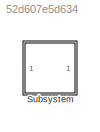
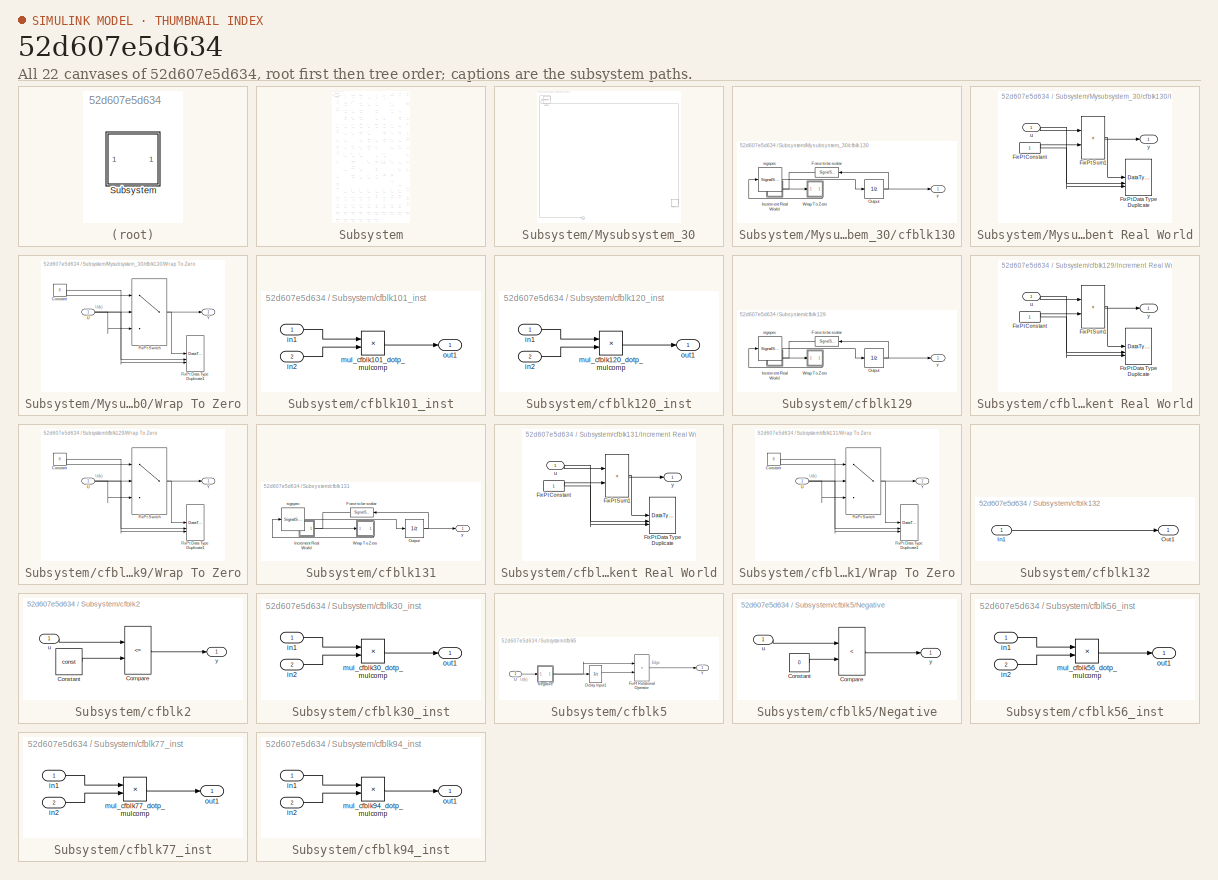
[diagram: thumbnail index - all 22 canvases of the model, root first then tree order]
MODEL slx_52d607e5d634
KIND model
CONFIG AbsTol = auto
CONFIG EnableMultiTasking = off
CONFIG FixedStep = auto
CONFIG MaxStep = auto
CONFIG MinStep = auto
CONFIG RelTol = 1e-3
CONFIG SampleTimeConstraint = Unconstrained
CONFIG SolverName = VariableStepAuto
CONFIG StartTime = 0.0
CONFIG StopTime = 10.0
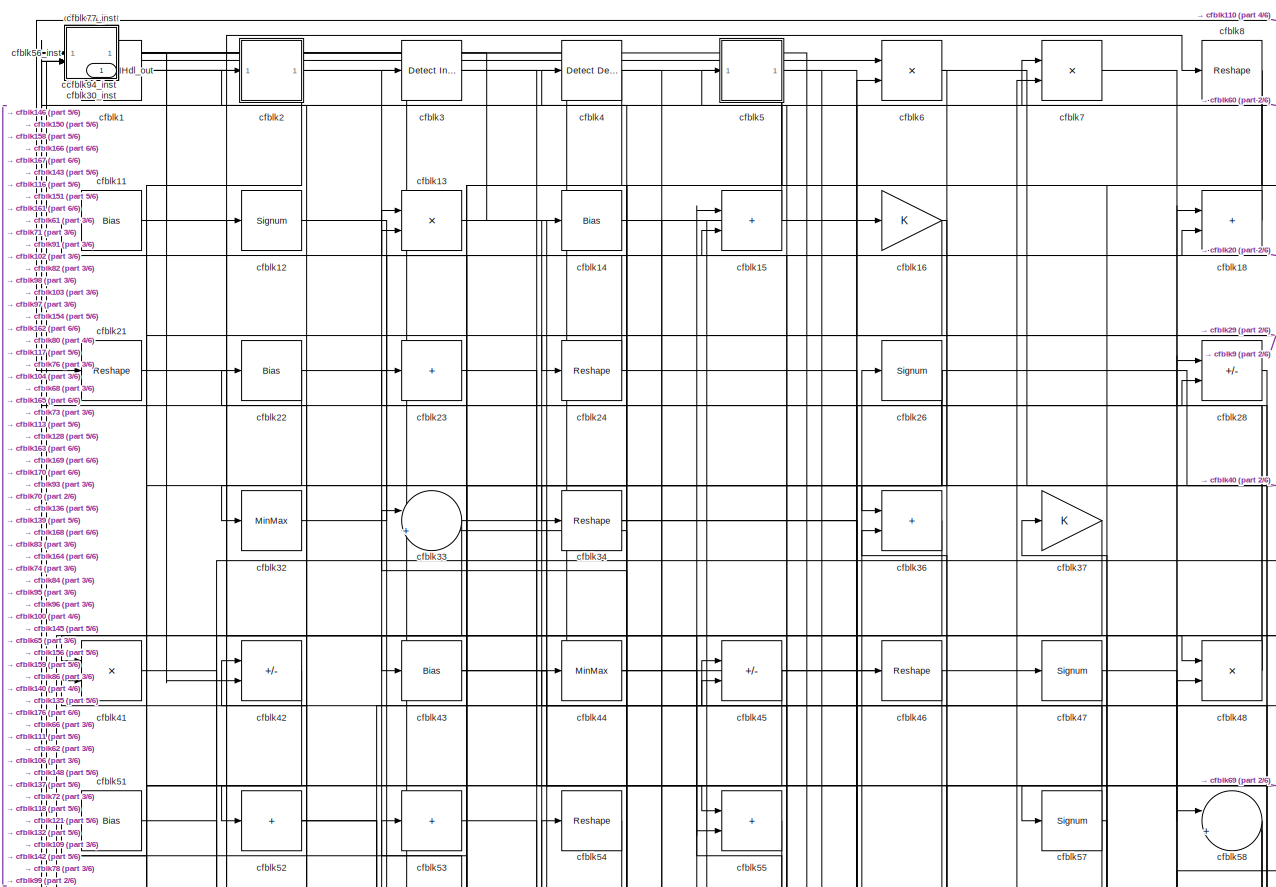
[diagram: Subsystem - part 1/6, full width, top band]
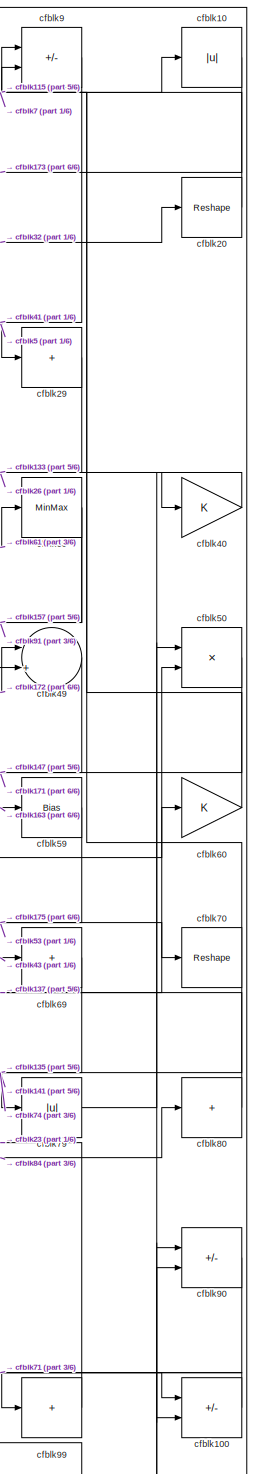
[diagram: Subsystem - part 2/6, top right region]
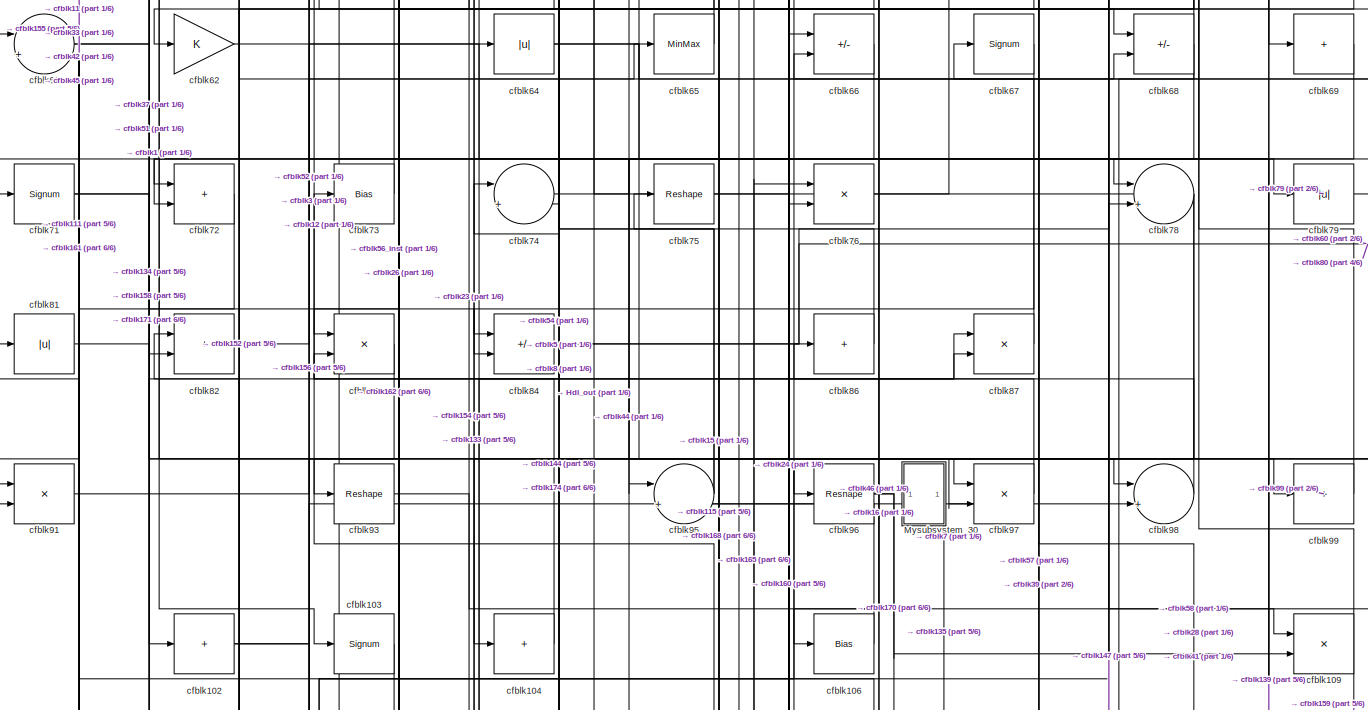
[diagram: Subsystem - part 3/6, full width, middle band]
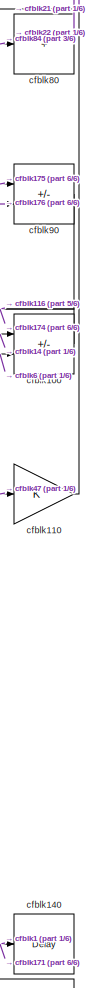
[diagram: Subsystem - part 4/6, middle right region]
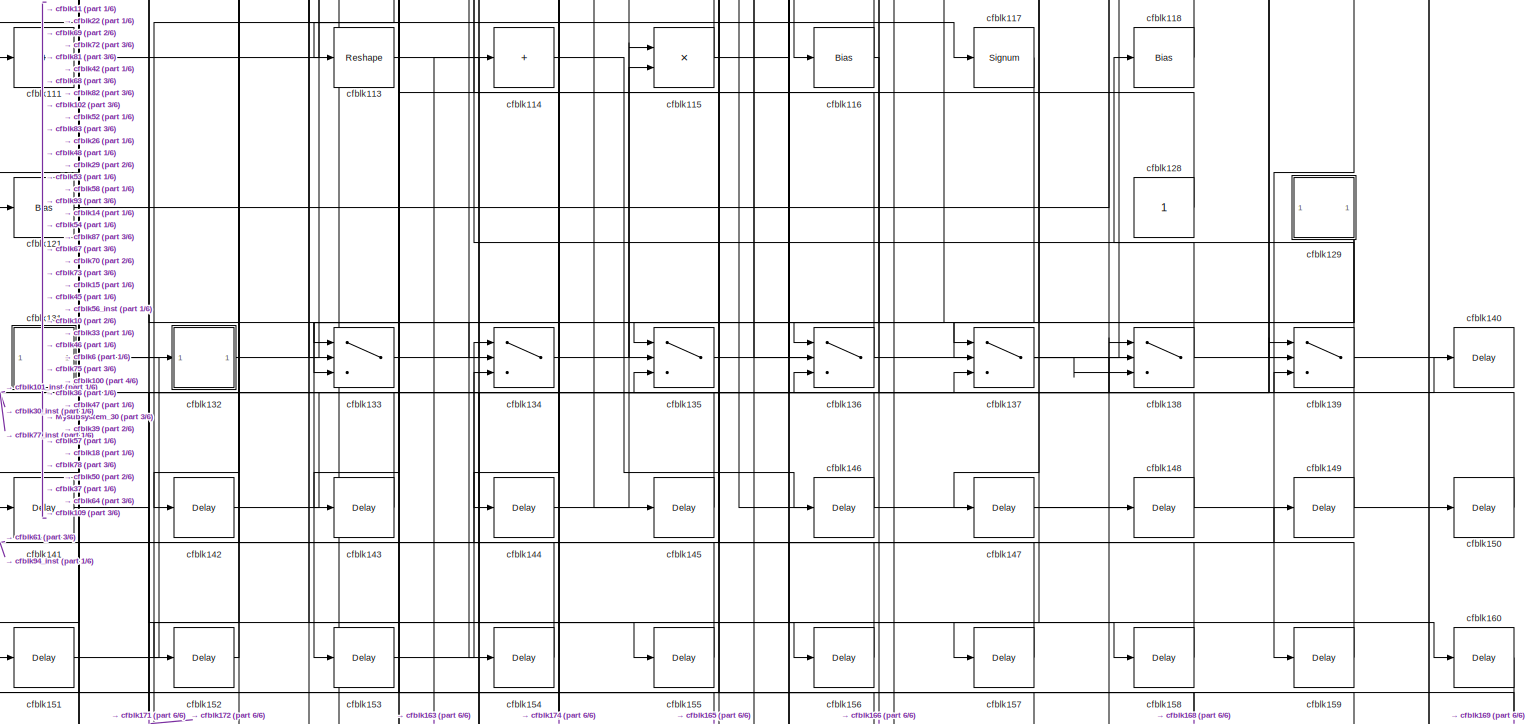
[diagram: Subsystem - part 5/6, full width, bottom band]
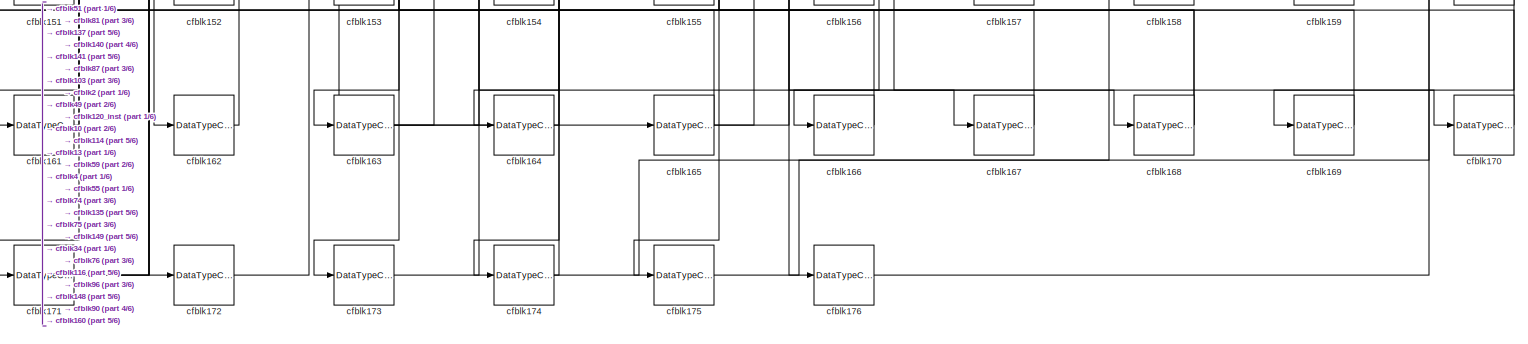
[diagram: Subsystem - part 6/6, full width, bottom band]
BLOCK [SubSystem] Subsystem
BLOCK [Outport] Subsystem/Hdl_out
  OutDataTypeStr = uint8
  SampleTime = 1
BLOCK [SubSystem] Subsystem/Mysubsystem_30
BLOCK [Outport] Subsystem/Mysubsystem_30/Out1
  SampleTime = 1
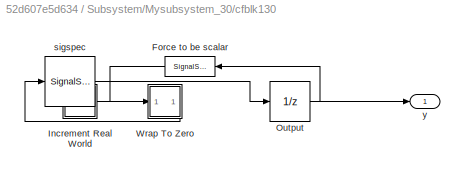
BLOCK [SubSystem] Subsystem/Mysubsystem_30/cfblk130
BLOCK [SignalSpecification] Subsystem/Mysubsystem_30/cfblk130/Force to be scalar
  Dimensions = 1
  DisableCoverage = on
BLOCK [SubSystem] Subsystem/Mysubsystem_30/cfblk130/Increment Real World
BLOCK [Constant] Subsystem/Mysubsystem_30/cfblk130/Increment Real World/FixPt Constant
  DisableCoverage = on
  OutDataTypeStr = Inherit: Inherit via back propagation
  SampleTime = -1
BLOCK [DataTypeDuplicate] Subsystem/Mysubsystem_30/cfblk130/Increment Real World/FixPt Data Type Duplicate
  DisableCoverage = on
  NumInputPorts = 3
BLOCK [Sum] Subsystem/Mysubsystem_30/cfblk130/Increment Real World/FixPt Sum1
  IconShape = rectangular
  InputSameDT = on
  LockScale = on
  OutDataTypeStr = Inherit: Inherit via back propagation
BLOCK [Inport] Subsystem/Mysubsystem_30/cfblk130/Increment Real World/u
  OutDataTypeStr = uint16
  SampleTime = 1
BLOCK [Outport] Subsystem/Mysubsystem_30/cfblk130/Increment Real World/y
  SampleTime = 1
BLOCK [UnitDelay] Subsystem/Mysubsystem_30/cfblk130/Output
  HasFrameUpgradeWarning = on
  InitialCondition = 0.0
  SampleTime = tsamp
BLOCK [SubSystem] Subsystem/Mysubsystem_30/cfblk130/Wrap To Zero
BLOCK [Constant] Subsystem/Mysubsystem_30/cfblk130/Wrap To Zero/Constant
  DisableCoverage = on
  OutDataTypeStr = Inherit: Inherit via back propagation
  SampleTime = -1
  Value = 0
BLOCK [DataTypeDuplicate] Subsystem/Mysubsystem_30/cfblk130/Wrap To Zero/FixPt Data Type Duplicate1
  DisableCoverage = on
  NumInputPorts = 3
BLOCK [Switch] Subsystem/Mysubsystem_30/cfblk130/Wrap To Zero/FixPt Switch
  Criteria = u2 > Threshold
  InputSameDT = off
  OutDataTypeStr = Inherit: Inherit via back propagation
  SaturateOnIntegerOverflow = off
  Threshold = Threshold
  ZeroCross = off
BLOCK [Inport] Subsystem/Mysubsystem_30/cfblk130/Wrap To Zero/U
  OutDataTypeStr = uint16
  SampleTime = 1
BLOCK [Outport] Subsystem/Mysubsystem_30/cfblk130/Wrap To Zero/Y
  SampleTime = 1
BLOCK [SignalSpecification] Subsystem/Mysubsystem_30/cfblk130/sigspec
  Dimensions = 1
  OutDataTypeStr = uint16
BLOCK [Outport] Subsystem/Mysubsystem_30/cfblk130/y
  SampleTime = 1
BLOCK [MinMax] Subsystem/Mysubsystem_30/cfblk63
BLOCK [Reference] Subsystem/cfblk1  REF=simulink/Logic and Bit
Operations/Detect
Increase
  LibrarySourceBlock = hdlsllib/Logic and Bit\nOperations/Detect\nIncrease
  SourceBlock = simulink/Logic and Bit\nOperations/Detect\nIncrease
  SourceType = Detect Increase
BLOCK [Abs] Subsystem/cfblk10
  OutDataTypeStr = uint8
  SaturateOnIntegerOverflow = off
BLOCK [Sum] Subsystem/cfblk100
  IconShape = rectangular
  Inputs = +-
  OutDataTypeStr = uint8
BLOCK [SubSystem] Subsystem/cfblk101_inst
BLOCK [Inport] Subsystem/cfblk101_inst/in1
  OutDataTypeStr = uint8
  SampleTime = 1
BLOCK [Inport] Subsystem/cfblk101_inst/in2
  OutDataTypeStr = uint8
  Port = 2
  SampleTime = 1
BLOCK [Product] Subsystem/cfblk101_inst/mul_cfblk101_dotp_mulcomp
  Inputs = **
  OutDataTypeStr = uint8
  SampleTime = 1
BLOCK [Outport] Subsystem/cfblk101_inst/out1
  OutDataTypeStr = uint8
  SampleTime = 1
BLOCK [Sum] Subsystem/cfblk102
  IconShape = rectangular
  Inputs = +
  OutDataTypeStr = uint8
BLOCK [Signum] Subsystem/cfblk103
BLOCK [Sum] Subsystem/cfblk104
  IconShape = rectangular
  Inputs = +
  OutDataTypeStr = uint8
BLOCK [Bias] Subsystem/cfblk106
  Bias = 0.0
  SaturateOnIntegerOverflow = off
BLOCK [Product] Subsystem/cfblk109
  Inputs = */
  OutDataTypeStr = uint8
  RndMeth = Zero
  SaturateOnIntegerOverflow = on
BLOCK [Bias] Subsystem/cfblk11
  Bias = 0.0
  SaturateOnIntegerOverflow = off
BLOCK [Gain] Subsystem/cfblk110
  OutDataTypeStr = uint8
BLOCK [Sum] Subsystem/cfblk111
  IconShape = rectangular
  Inputs = +
  OutDataTypeStr = uint8
BLOCK [Reshape] Subsystem/cfblk113
BLOCK [Sum] Subsystem/cfblk114
  IconShape = rectangular
  Inputs = +
  OutDataTypeStr = uint8
BLOCK [Product] Subsystem/cfblk115
  Inputs = */
  OutDataTypeStr = uint8
  RndMeth = Zero
  SaturateOnIntegerOverflow = on
BLOCK [Bias] Subsystem/cfblk116
  Bias = 0.0
  SaturateOnIntegerOverflow = off
BLOCK [Signum] Subsystem/cfblk117
BLOCK [Bias] Subsystem/cfblk118
  Bias = 0.0
  SaturateOnIntegerOverflow = off
BLOCK [Signum] Subsystem/cfblk12
BLOCK [SubSystem] Subsystem/cfblk120_inst
BLOCK [Inport] Subsystem/cfblk120_inst/in1
  OutDataTypeStr = uint8
  SampleTime = 1
BLOCK [Inport] Subsystem/cfblk120_inst/in2
  OutDataTypeStr = uint8
  Port = 2
  SampleTime = 1
BLOCK [Product] Subsystem/cfblk120_inst/mul_cfblk120_dotp_mulcomp
  Inputs = **
  OutDataTypeStr = uint8
  SampleTime = 1
BLOCK [Outport] Subsystem/cfblk120_inst/out1
  OutDataTypeStr = uint8
  SampleTime = 1
BLOCK [Bias] Subsystem/cfblk121
  Bias = 0.0
  SaturateOnIntegerOverflow = off
BLOCK [Constant] Subsystem/cfblk128
  OutDataTypeStr = uint8
  SampleTime = -1
BLOCK [SubSystem] Subsystem/cfblk129
BLOCK [SignalSpecification] Subsystem/cfblk129/Force to be scalar
  Dimensions = 1
  DisableCoverage = on
BLOCK [SubSystem] Subsystem/cfblk129/Increment Real World
BLOCK [Constant] Subsystem/cfblk129/Increment Real World/FixPt Constant
  DisableCoverage = on
  OutDataTypeStr = Inherit: Inherit via back propagation
  SampleTime = -1
BLOCK [DataTypeDuplicate] Subsystem/cfblk129/Increment Real World/FixPt Data Type Duplicate
  DisableCoverage = on
  NumInputPorts = 3
BLOCK [Sum] Subsystem/cfblk129/Increment Real World/FixPt Sum1
  IconShape = rectangular
  InputSameDT = on
  LockScale = on
  OutDataTypeStr = Inherit: Inherit via back propagation
BLOCK [Inport] Subsystem/cfblk129/Increment Real World/u
  OutDataTypeStr = uint16
  SampleTime = 1
BLOCK [Outport] Subsystem/cfblk129/Increment Real World/y
  SampleTime = 1
BLOCK [UnitDelay] Subsystem/cfblk129/Output
  HasFrameUpgradeWarning = on
  InitialCondition = 0.0
  SampleTime = tsamp
BLOCK [SubSystem] Subsystem/cfblk129/Wrap To Zero
BLOCK [Constant] Subsystem/cfblk129/Wrap To Zero/Constant
  DisableCoverage = on
  OutDataTypeStr = Inherit: Inherit via back propagation
  SampleTime = -1
  Value = 0
BLOCK [DataTypeDuplicate] Subsystem/cfblk129/Wrap To Zero/FixPt Data Type Duplicate1
  DisableCoverage = on
  NumInputPorts = 3
BLOCK [Switch] Subsystem/cfblk129/Wrap To Zero/FixPt Switch
  Criteria = u2 > Threshold
  InputSameDT = off
  OutDataTypeStr = Inherit: Inherit via back propagation
  SaturateOnIntegerOverflow = off
  Threshold = Threshold
  ZeroCross = off
BLOCK [Inport] Subsystem/cfblk129/Wrap To Zero/U
  OutDataTypeStr = uint16
  SampleTime = 1
BLOCK [Outport] Subsystem/cfblk129/Wrap To Zero/Y
  SampleTime = 1
BLOCK [SignalSpecification] Subsystem/cfblk129/sigspec
  Dimensions = 1
  OutDataTypeStr = uint16
BLOCK [Outport] Subsystem/cfblk129/y
  SampleTime = 1
BLOCK [Product] Subsystem/cfblk13
  Inputs = */
  OutDataTypeStr = uint8
  RndMeth = Zero
  SaturateOnIntegerOverflow = on
BLOCK [SubSystem] Subsystem/cfblk131
BLOCK [SignalSpecification] Subsystem/cfblk131/Force to be scalar
  Dimensions = 1
  DisableCoverage = on
BLOCK [SubSystem] Subsystem/cfblk131/Increment Real World
BLOCK [Constant] Subsystem/cfblk131/Increment Real World/FixPt Constant
  DisableCoverage = on
  OutDataTypeStr = Inherit: Inherit via back propagation
  SampleTime = -1
BLOCK [DataTypeDuplicate] Subsystem/cfblk131/Increment Real World/FixPt Data Type Duplicate
  DisableCoverage = on
  NumInputPorts = 3
BLOCK [Sum] Subsystem/cfblk131/Increment Real World/FixPt Sum1
  IconShape = rectangular
  InputSameDT = on
  LockScale = on
  OutDataTypeStr = Inherit: Inherit via back propagation
BLOCK [Inport] Subsystem/cfblk131/Increment Real World/u
  OutDataTypeStr = uint8
  SampleTime = 1
BLOCK [Outport] Subsystem/cfblk131/Increment Real World/y
  SampleTime = 1
BLOCK [UnitDelay] Subsystem/cfblk131/Output
  HasFrameUpgradeWarning = on
  InitialCondition = 0.0
  SampleTime = tsamp
BLOCK [SubSystem] Subsystem/cfblk131/Wrap To Zero
BLOCK [Constant] Subsystem/cfblk131/Wrap To Zero/Constant
  DisableCoverage = on
  OutDataTypeStr = Inherit: Inherit via back propagation
  SampleTime = -1
  Value = 0
BLOCK [DataTypeDuplicate] Subsystem/cfblk131/Wrap To Zero/FixPt Data Type Duplicate1
  DisableCoverage = on
  NumInputPorts = 3
BLOCK [Switch] Subsystem/cfblk131/Wrap To Zero/FixPt Switch
  Criteria = u2 > Threshold
  InputSameDT = off
  OutDataTypeStr = Inherit: Inherit via back propagation
  SaturateOnIntegerOverflow = off
  Threshold = Threshold
  ZeroCross = off
BLOCK [Inport] Subsystem/cfblk131/Wrap To Zero/U
  OutDataTypeStr = uint8
  SampleTime = 1
BLOCK [Outport] Subsystem/cfblk131/Wrap To Zero/Y
  SampleTime = 1
BLOCK [SignalSpecification] Subsystem/cfblk131/sigspec
  Dimensions = 1
  OutDataTypeStr = uint8
BLOCK [Outport] Subsystem/cfblk131/y
  SampleTime = 1
BLOCK [SubSystem] Subsystem/cfblk132
BLOCK [Inport] Subsystem/cfblk132/In1
  OutDataTypeStr = uint8
  PortDimensions = 1
  SampleTime = 1
BLOCK [Outport] Subsystem/cfblk132/Out1
  SampleTime = 1
BLOCK [Switch] Subsystem/cfblk133
  InputSameDT = off
  OutDataTypeStr = uint8
  SaturateOnIntegerOverflow = off
BLOCK [Switch] Subsystem/cfblk134
  InputSameDT = off
  OutDataTypeStr = uint8
  SaturateOnIntegerOverflow = off
BLOCK [Switch] Subsystem/cfblk135
  InputSameDT = off
  OutDataTypeStr = uint8
  SaturateOnIntegerOverflow = off
BLOCK [Switch] Subsystem/cfblk136
  InputSameDT = off
  OutDataTypeStr = uint8
  SaturateOnIntegerOverflow = off
BLOCK [Switch] Subsystem/cfblk137
  InputSameDT = off
  OutDataTypeStr = uint8
  SaturateOnIntegerOverflow = off
BLOCK [Switch] Subsystem/cfblk138
  InputSameDT = off
  OutDataTypeStr = uint8
  SaturateOnIntegerOverflow = off
BLOCK [Switch] Subsystem/cfblk139
  InputSameDT = off
  OutDataTypeStr = uint8
  SaturateOnIntegerOverflow = off
BLOCK [Bias] Subsystem/cfblk14
  Bias = 0.0
  SaturateOnIntegerOverflow = off
BLOCK [Delay] Subsystem/cfblk140
  InputPortMap = u0
  SampleTime = 1
BLOCK [Delay] Subsystem/cfblk141
  InputPortMap = u0
  SampleTime = 1
BLOCK [Delay] Subsystem/cfblk142
  InputPortMap = u0
  SampleTime = 1
BLOCK [Delay] Subsystem/cfblk143
  InputPortMap = u0
  SampleTime = 1
BLOCK [Delay] Subsystem/cfblk144
  InputPortMap = u0
  SampleTime = 1
BLOCK [Delay] Subsystem/cfblk145
  InputPortMap = u0
  SampleTime = 1
BLOCK [Delay] Subsystem/cfblk146
  InputPortMap = u0
  SampleTime = 1
BLOCK [Delay] Subsystem/cfblk147
  InputPortMap = u0
  SampleTime = 1
BLOCK [Delay] Subsystem/cfblk148
  InputPortMap = u0
  SampleTime = 1
BLOCK [Delay] Subsystem/cfblk149
  InputPortMap = u0
  SampleTime = 1
BLOCK [Sum] Subsystem/cfblk15
  IconShape = rectangular
  OutDataTypeStr = uint8
BLOCK [Delay] Subsystem/cfblk150
  InputPortMap = u0
  SampleTime = 1
BLOCK [Delay] Subsystem/cfblk151
  InputPortMap = u0
  SampleTime = 1
BLOCK [Delay] Subsystem/cfblk152
  InputPortMap = u0
  SampleTime = 1
BLOCK [Delay] Subsystem/cfblk153
  InputPortMap = u0
  SampleTime = 1
BLOCK [Delay] Subsystem/cfblk154
  InputPortMap = u0
  SampleTime = 1
BLOCK [Delay] Subsystem/cfblk155
  InputPortMap = u0
  SampleTime = 1
BLOCK [Delay] Subsystem/cfblk156
  InputPortMap = u0
  SampleTime = 1
BLOCK [Delay] Subsystem/cfblk157
  InputPortMap = u0
  SampleTime = 1
BLOCK [Delay] Subsystem/cfblk158
  InputPortMap = u0
  SampleTime = 1
BLOCK [Delay] Subsystem/cfblk159
  InputPortMap = u0
  SampleTime = 1
BLOCK [Gain] Subsystem/cfblk16
  OutDataTypeStr = uint8
BLOCK [Delay] Subsystem/cfblk160
  InputPortMap = u0
  SampleTime = 1
BLOCK [DataTypeConversion] Subsystem/cfblk161
  OutDataTypeStr = uint8
  RndMeth = Floor
  SaturateOnIntegerOverflow = off
BLOCK [DataTypeConversion] Subsystem/cfblk162
  OutDataTypeStr = uint8
  RndMeth = Floor
  SaturateOnIntegerOverflow = off
BLOCK [DataTypeConversion] Subsystem/cfblk163
  OutDataTypeStr = uint8
  RndMeth = Floor
  SaturateOnIntegerOverflow = off
BLOCK [DataTypeConversion] Subsystem/cfblk164
  OutDataTypeStr = uint8
  RndMeth = Floor
  SaturateOnIntegerOverflow = off
BLOCK [DataTypeConversion] Subsystem/cfblk165
  OutDataTypeStr = uint8
  RndMeth = Floor
  SaturateOnIntegerOverflow = off
BLOCK [DataTypeConversion] Subsystem/cfblk166
  OutDataTypeStr = uint8
  RndMeth = Floor
  SaturateOnIntegerOverflow = off
BLOCK [DataTypeConversion] Subsystem/cfblk167
  OutDataTypeStr = uint8
  RndMeth = Floor
  SaturateOnIntegerOverflow = off
BLOCK [DataTypeConversion] Subsystem/cfblk168
  OutDataTypeStr = uint8
  RndMeth = Floor
  SaturateOnIntegerOverflow = off
BLOCK [DataTypeConversion] Subsystem/cfblk169
  OutDataTypeStr = uint8
  RndMeth = Floor
  SaturateOnIntegerOverflow = off
BLOCK [DataTypeConversion] Subsystem/cfblk170
  OutDataTypeStr = uint8
  RndMeth = Floor
  SaturateOnIntegerOverflow = off
BLOCK [DataTypeConversion] Subsystem/cfblk171
  OutDataTypeStr = uint8
  RndMeth = Floor
  SaturateOnIntegerOverflow = off
BLOCK [DataTypeConversion] Subsystem/cfblk172
  OutDataTypeStr = uint8
  RndMeth = Floor
  SaturateOnIntegerOverflow = off
BLOCK [DataTypeConversion] Subsystem/cfblk173
  OutDataTypeStr = uint8
  RndMeth = Floor
  SaturateOnIntegerOverflow = off
BLOCK [DataTypeConversion] Subsystem/cfblk174
  OutDataTypeStr = uint8
  RndMeth = Floor
  SaturateOnIntegerOverflow = off
BLOCK [DataTypeConversion] Subsystem/cfblk175
  OutDataTypeStr = uint8
  RndMeth = Floor
  SaturateOnIntegerOverflow = off
BLOCK [DataTypeConversion] Subsystem/cfblk176
  OutDataTypeStr = uint8
  RndMeth = Floor
  SaturateOnIntegerOverflow = off
BLOCK [Sum] Subsystem/cfblk18
  IconShape = rectangular
  OutDataTypeStr = uint8
BLOCK [SubSystem] Subsystem/cfblk2
BLOCK [RelationalOperator] Subsystem/cfblk2/Compare
  Operator = <=
  OutDataTypeStr = fixdt(0, 8)
BLOCK [Constant] Subsystem/cfblk2/Constant
  DisableCoverage = on
  OutDataTypeStr = Inherit: Inherit via back propagation
  SampleTime = -1
  Value = const
BLOCK [Inport] Subsystem/cfblk2/u
  OutDataTypeStr = uint8
  SampleTime = 1
BLOCK [Outport] Subsystem/cfblk2/y
  SampleTime = 1
BLOCK [Reshape] Subsystem/cfblk20
BLOCK [Reshape] Subsystem/cfblk21
BLOCK [Bias] Subsystem/cfblk22
  Bias = 0.0
  SaturateOnIntegerOverflow = off
BLOCK [Sum] Subsystem/cfblk23
  IconShape = rectangular
  Inputs = +
  OutDataTypeStr = uint8
BLOCK [Reshape] Subsystem/cfblk24
BLOCK [Signum] Subsystem/cfblk26
BLOCK [Sum] Subsystem/cfblk28
  IconShape = rectangular
  Inputs = +-
  OutDataTypeStr = uint8
BLOCK [Sum] Subsystem/cfblk29
  IconShape = rectangular
  Inputs = +
  OutDataTypeStr = uint8
BLOCK [Reference] Subsystem/cfblk3  REF=simulink/Logic and Bit
Operations/Detect
Increase
  LibrarySourceBlock = hdlsllib/Logic and Bit\nOperations/Detect\nIncrease
  SourceBlock = simulink/Logic and Bit\nOperations/Detect\nIncrease
  SourceType = Detect Increase
BLOCK [SubSystem] Subsystem/cfblk30_inst
BLOCK [Inport] Subsystem/cfblk30_inst/in1
  OutDataTypeStr = uint8
  SampleTime = 1
BLOCK [Inport] Subsystem/cfblk30_inst/in2
  OutDataTypeStr = uint8
  Port = 2
  SampleTime = 1
BLOCK [Product] Subsystem/cfblk30_inst/mul_cfblk30_dotp_mulcomp
  Inputs = **
  OutDataTypeStr = uint8
  SampleTime = 1
BLOCK [Outport] Subsystem/cfblk30_inst/out1
  OutDataTypeStr = uint8
  SampleTime = 1
BLOCK [MinMax] Subsystem/cfblk32
  OutDataTypeStr = uint8
BLOCK [Sum] Subsystem/cfblk33
  Inputs = |++
  OutDataTypeStr = uint8
BLOCK [Reshape] Subsystem/cfblk34
BLOCK [Sum] Subsystem/cfblk36
  IconShape = rectangular
  OutDataTypeStr = uint8
BLOCK [Gain] Subsystem/cfblk37
  OutDataTypeStr = uint8
BLOCK [MinMax] Subsystem/cfblk39
  OutDataTypeStr = uint8
BLOCK [Reference] Subsystem/cfblk4  REF=simulink/Logic and Bit
Operations/Detect
Decrease
  LibrarySourceBlock = hdlsllib/Logic and Bit\nOperations/Detect\nDecrease
  SourceBlock = simulink/Logic and Bit\nOperations/Detect\nDecrease
  SourceType = Detect Decrease
BLOCK [Gain] Subsystem/cfblk40
  OutDataTypeStr = uint8
BLOCK [Product] Subsystem/cfblk41
  Inputs = */
  OutDataTypeStr = uint8
  RndMeth = Zero
  SaturateOnIntegerOverflow = on
BLOCK [Sum] Subsystem/cfblk42
  IconShape = rectangular
  Inputs = +-
  OutDataTypeStr = uint8
BLOCK [Bias] Subsystem/cfblk43
  Bias = 0.0
  SaturateOnIntegerOverflow = off
BLOCK [MinMax] Subsystem/cfblk44
  OutDataTypeStr = uint8
BLOCK [Sum] Subsystem/cfblk45
  IconShape = rectangular
  Inputs = +-
  OutDataTypeStr = uint8
BLOCK [Reshape] Subsystem/cfblk46
BLOCK [Signum] Subsystem/cfblk47
BLOCK [Product] Subsystem/cfblk48
  Inputs = */
  OutDataTypeStr = uint8
  RndMeth = Zero
  SaturateOnIntegerOverflow = on
BLOCK [Sum] Subsystem/cfblk49
  Inputs = |++
  OutDataTypeStr = uint8
BLOCK [SubSystem] Subsystem/cfblk5
BLOCK [UnitDelay] Subsystem/cfblk5/Delay Input1
  Description = Store in Global RAM
  DisableCoverage = on
  HasFrameUpgradeWarning = on
  InitialCondition = vinit
  SampleTime = -1
BLOCK [RelationalOperator] Subsystem/cfblk5/FixPt Relational Operator
  InputSameDT = off
  Operator = >
  OutDataTypeStr = fixdt(0, 8)
  ZeroCross = off
BLOCK [SubSystem] Subsystem/cfblk5/Negative
BLOCK [RelationalOperator] Subsystem/cfblk5/Negative/Compare
  Operator = <
  OutDataTypeStr = boolean
  ZeroCross = off
BLOCK [Constant] Subsystem/cfblk5/Negative/Constant
  DisableCoverage = on
  OutDataTypeStr = Inherit: Inherit via back propagation
  PreserveConstantTs = on
  SampleTime = -1
  Value = 0
BLOCK [Inport] Subsystem/cfblk5/Negative/u
  OutDataTypeStr = uint8
  SampleTime = 1
BLOCK [Outport] Subsystem/cfblk5/Negative/y
  SampleTime = 1
BLOCK [Inport] Subsystem/cfblk5/U
  OutDataTypeStr = uint8
  SampleTime = 1
BLOCK [Outport] Subsystem/cfblk5/Y
  SampleTime = 1
BLOCK [Product] Subsystem/cfblk50
  Inputs = */
  OutDataTypeStr = uint8
  RndMeth = Zero
  SaturateOnIntegerOverflow = on
BLOCK [Bias] Subsystem/cfblk51
  Bias = 0.0
  SaturateOnIntegerOverflow = off
BLOCK [Sum] Subsystem/cfblk52
  IconShape = rectangular
  Inputs = +
  OutDataTypeStr = uint8
BLOCK [Sum] Subsystem/cfblk53
  IconShape = rectangular
  Inputs = +
  OutDataTypeStr = uint8
BLOCK [Reshape] Subsystem/cfblk54
BLOCK [Sum] Subsystem/cfblk55
  IconShape = rectangular
  OutDataTypeStr = uint8
BLOCK [SubSystem] Subsystem/cfblk56_inst
BLOCK [Inport] Subsystem/cfblk56_inst/in1
  OutDataTypeStr = uint8
  SampleTime = 1
BLOCK [Inport] Subsystem/cfblk56_inst/in2
  OutDataTypeStr = uint8
  Port = 2
  SampleTime = 1
BLOCK [Product] Subsystem/cfblk56_inst/mul_cfblk56_dotp_mulcomp
  Inputs = **
  OutDataTypeStr = uint8
  SampleTime = 1
BLOCK [Outport] Subsystem/cfblk56_inst/out1
  OutDataTypeStr = uint8
  SampleTime = 1
BLOCK [Signum] Subsystem/cfblk57
BLOCK [Sum] Subsystem/cfblk58
  Inputs = |++
  OutDataTypeStr = uint8
BLOCK [Bias] Subsystem/cfblk59
  Bias = 0.0
  SaturateOnIntegerOverflow = off
BLOCK [Product] Subsystem/cfblk6
  Inputs = */
  OutDataTypeStr = uint8
  RndMeth = Zero
  SaturateOnIntegerOverflow = on
BLOCK [Gain] Subsystem/cfblk60
  OutDataTypeStr = uint8
BLOCK [Sum] Subsystem/cfblk61
  Inputs = |++
  OutDataTypeStr = uint8
BLOCK [Gain] Subsystem/cfblk62
  OutDataTypeStr = uint8
BLOCK [Abs] Subsystem/cfblk64
  OutDataTypeStr = uint8
  SaturateOnIntegerOverflow = off
BLOCK [MinMax] Subsystem/cfblk65
  OutDataTypeStr = uint8
BLOCK [Sum] Subsystem/cfblk66
  IconShape = rectangular
  Inputs = +-
  OutDataTypeStr = uint8
BLOCK [Signum] Subsystem/cfblk67
BLOCK [Sum] Subsystem/cfblk68
  IconShape = rectangular
  Inputs = +-
  OutDataTypeStr = uint8
BLOCK [Sum] Subsystem/cfblk69
  IconShape = rectangular
  Inputs = +
  OutDataTypeStr = uint8
BLOCK [Product] Subsystem/cfblk7
  Inputs = */
  OutDataTypeStr = uint8
  RndMeth = Zero
  SaturateOnIntegerOverflow = on
BLOCK [Reshape] Subsystem/cfblk70
BLOCK [Signum] Subsystem/cfblk71
BLOCK [Sum] Subsystem/cfblk72
  IconShape = rectangular
  OutDataTypeStr = uint8
BLOCK [Bias] Subsystem/cfblk73
  Bias = 0.0
  SaturateOnIntegerOverflow = off
BLOCK [Sum] Subsystem/cfblk74
  Inputs = |++
  OutDataTypeStr = uint8
BLOCK [Reshape] Subsystem/cfblk75
BLOCK [Product] Subsystem/cfblk76
  Inputs = */
  OutDataTypeStr = uint8
  RndMeth = Zero
  SaturateOnIntegerOverflow = on
BLOCK [SubSystem] Subsystem/cfblk77_inst
BLOCK [Inport] Subsystem/cfblk77_inst/in1
  OutDataTypeStr = uint8
  SampleTime = 1
BLOCK [Inport] Subsystem/cfblk77_inst/in2
  OutDataTypeStr = uint8
  Port = 2
  SampleTime = 1
BLOCK [Product] Subsystem/cfblk77_inst/mul_cfblk77_dotp_mulcomp
  Inputs = **
  OutDataTypeStr = uint8
  SampleTime = 1
BLOCK [Outport] Subsystem/cfblk77_inst/out1
  OutDataTypeStr = uint8
  SampleTime = 1
BLOCK [Sum] Subsystem/cfblk78
  Inputs = |++
  OutDataTypeStr = uint8
BLOCK [Abs] Subsystem/cfblk79
  OutDataTypeStr = uint8
  SaturateOnIntegerOverflow = off
BLOCK [Reshape] Subsystem/cfblk8
BLOCK [Sum] Subsystem/cfblk80
  IconShape = rectangular
  Inputs = +
  OutDataTypeStr = uint8
BLOCK [Abs] Subsystem/cfblk81
  OutDataTypeStr = uint8
  SaturateOnIntegerOverflow = off
BLOCK [Sum] Subsystem/cfblk82
  IconShape = rectangular
  OutDataTypeStr = uint8
BLOCK [Product] Subsystem/cfblk83
  Inputs = */
  OutDataTypeStr = uint8
  RndMeth = Zero
  SaturateOnIntegerOverflow = on
BLOCK [Sum] Subsystem/cfblk84
  IconShape = rectangular
  Inputs = +-
  OutDataTypeStr = uint8
BLOCK [Sum] Subsystem/cfblk86
  IconShape = rectangular
  Inputs = +
  OutDataTypeStr = uint8
BLOCK [Product] Subsystem/cfblk87
  Inputs = */
  OutDataTypeStr = uint8
  RndMeth = Zero
  SaturateOnIntegerOverflow = on
BLOCK [Sum] Subsystem/cfblk9
  IconShape = rectangular
  Inputs = +-
  OutDataTypeStr = uint8
BLOCK [Sum] Subsystem/cfblk90
  IconShape = rectangular
  Inputs = +-
  OutDataTypeStr = uint8
BLOCK [Product] Subsystem/cfblk91
  Inputs = */
  OutDataTypeStr = uint8
  RndMeth = Zero
  SaturateOnIntegerOverflow = on
BLOCK [Reshape] Subsystem/cfblk93
BLOCK [SubSystem] Subsystem/cfblk94_inst
BLOCK [Inport] Subsystem/cfblk94_inst/in1
  OutDataTypeStr = uint8
  SampleTime = 1
BLOCK [Inport] Subsystem/cfblk94_inst/in2
  OutDataTypeStr = uint8
  Port = 2
  SampleTime = 1
BLOCK [Product] Subsystem/cfblk94_inst/mul_cfblk94_dotp_mulcomp
  Inputs = **
  OutDataTypeStr = uint8
  SampleTime = 1
BLOCK [Outport] Subsystem/cfblk94_inst/out1
  OutDataTypeStr = uint8
  SampleTime = 1
BLOCK [Sum] Subsystem/cfblk95
  Inputs = |++
  OutDataTypeStr = uint8
BLOCK [Reshape] Subsystem/cfblk96
BLOCK [Product] Subsystem/cfblk97
  Inputs = */
  OutDataTypeStr = uint8
  RndMeth = Zero
  SaturateOnIntegerOverflow = on
BLOCK [Sum] Subsystem/cfblk98
  Inputs = |++
  OutDataTypeStr = uint8
BLOCK [Sum] Subsystem/cfblk99
  IconShape = rectangular
  Inputs = +
  OutDataTypeStr = uint8
ANNOTATION Subsystem/Mysubsystem_30/cfblk130/Wrap To Zero: U(k)
ANNOTATION Subsystem/cfblk129/Wrap To Zero: U(k)
ANNOTATION Subsystem/cfblk131/Wrap To Zero: U(k)
ANNOTATION Subsystem/cfblk5: Edge
ANNOTATION Subsystem/cfblk5: U(k)
LINE Subsystem/Mysubsystem_30/cfblk130:1 -> Subsystem/Mysubsystem_30/cfblk63:1
LINE Subsystem/Mysubsystem_30/cfblk63:1 -> Subsystem/Mysubsystem_30/Out1:1
LINE Subsystem/Mysubsystem_30:1 -> Subsystem/cfblk135:1
LINE Subsystem/cfblk100:1 -> Subsystem/cfblk116:1
LINE Subsystem/cfblk101_inst/in1:1 -> Subsystem/cfblk101_inst/mul_cfblk101_dotp_mulcomp:1
LINE Subsystem/cfblk101_inst/in2:1 -> Subsystem/cfblk101_inst/mul_cfblk101_dotp_mulcomp:2
LINE Subsystem/cfblk101_inst/mul_cfblk101_dotp_mulcomp:1 -> Subsystem/cfblk101_inst/out1:1
LINE Subsystem/cfblk101_inst:1 -> Subsystem/cfblk94_inst:1
NET Subsystem/cfblk102:1 -> Subsystem/cfblk156:1, Subsystem/cfblk98:2
LINE Subsystem/cfblk103:1 -> Subsystem/cfblk162:1
LINE Subsystem/cfblk104:1 -> Subsystem/cfblk3:1
LINE Subsystem/cfblk106:1 -> Subsystem/cfblk95:2
NET Subsystem/cfblk109:1 -> Subsystem/cfblk159:1, Subsystem/cfblk41:2
LINE Subsystem/cfblk10:1 -> Subsystem/cfblk173:1
LINE Subsystem/cfblk110:1 -> Subsystem/cfblk21:1
LINE Subsystem/cfblk111:1 -> Subsystem/cfblk26:1
LINE Subsystem/cfblk113:1 -> Subsystem/cfblk155:1
LINE Subsystem/cfblk114:1 -> Subsystem/cfblk146:1
NET Subsystem/cfblk115:1 -> Subsystem/cfblk10:1, Subsystem/cfblk73:1
NET Subsystem/cfblk116:1 -> Subsystem/cfblk11:1, Subsystem/cfblk166:1
LINE Subsystem/cfblk117:1 -> Subsystem/cfblk153:1
LINE Subsystem/cfblk118:1 -> Subsystem/cfblk37:1
NET Subsystem/cfblk11:1 -> Subsystem/cfblk151:1, Subsystem/cfblk48:1, Subsystem/cfblk97:1
LINE Subsystem/cfblk120_inst/in1:1 -> Subsystem/cfblk120_inst/mul_cfblk120_dotp_mulcomp:1
LINE Subsystem/cfblk120_inst/in2:1 -> Subsystem/cfblk120_inst/mul_cfblk120_dotp_mulcomp:2
LINE Subsystem/cfblk120_inst/mul_cfblk120_dotp_mulcomp:1 -> Subsystem/cfblk120_inst/out1:1
LINE Subsystem/cfblk120_inst:1 -> Subsystem/cfblk165:1
LINE Subsystem/cfblk121:1 -> Subsystem/cfblk18:1
LINE Subsystem/cfblk128:1 -> Subsystem/cfblk53:1
NET Subsystem/cfblk129:1 -> Subsystem/cfblk133:3, Subsystem/cfblk137:2
LINE Subsystem/cfblk12:1 -> Subsystem/cfblk68:1
NET Subsystem/cfblk131:1 -> Subsystem/cfblk132:1, Subsystem/cfblk139:3
LINE Subsystem/cfblk132/In1:1 -> Subsystem/cfblk132/Out1:1
LINE Subsystem/cfblk132:1 -> Subsystem/cfblk48:2
LINE Subsystem/cfblk133:1 -> Subsystem/cfblk87:1
LINE Subsystem/cfblk134:1 -> Subsystem/cfblk115:2
LINE Subsystem/cfblk135:1 -> Subsystem/cfblk46:1
LINE Subsystem/cfblk136:1 -> Subsystem/cfblk14:1
NET Subsystem/cfblk137:1 -> Subsystem/cfblk138:3, Subsystem/cfblk50:2
LINE Subsystem/cfblk138:1 -> Subsystem/cfblk118:1
NET Subsystem/cfblk139:1 -> Subsystem/cfblk136:3, Subsystem/cfblk54:1
LINE Subsystem/cfblk13:1 -> Subsystem/cfblk168:1
LINE Subsystem/cfblk140:1 -> Subsystem/cfblk1:1
LINE Subsystem/cfblk141:1 -> Subsystem/cfblk172:1
LINE Subsystem/cfblk142:1 -> Subsystem/cfblk138:1
LINE Subsystem/cfblk143:1 -> Subsystem/cfblk30_inst:2
LINE Subsystem/cfblk144:1 -> Subsystem/cfblk139:1
LINE Subsystem/cfblk145:1 -> Subsystem/cfblk115:1
LINE Subsystem/cfblk146:1 -> Subsystem/cfblk101_inst:2
LINE Subsystem/cfblk147:1 -> Subsystem/cfblk78:2
LINE Subsystem/cfblk148:1 -> Subsystem/cfblk36:2
LINE Subsystem/cfblk149:1 -> Subsystem/cfblk138:2
NET Subsystem/cfblk14:1 -> Subsystem/cfblk100:1, Subsystem/cfblk145:1
LINE Subsystem/cfblk150:1 -> Subsystem/cfblk77_inst:2
LINE Subsystem/cfblk151:1 -> Subsystem/cfblk6:2
LINE Subsystem/cfblk152:1 -> Subsystem/cfblk82:1
LINE Subsystem/cfblk153:1 -> Subsystem/cfblk134:1
LINE Subsystem/cfblk154:1 -> Subsystem/cfblk42:1
LINE Subsystem/cfblk155:1 -> Subsystem/cfblk61:1
LINE Subsystem/cfblk156:1 -> Subsystem/cfblk15:2
LINE Subsystem/cfblk157:1 -> Subsystem/cfblk134:3
LINE Subsystem/cfblk158:1 -> Subsystem/cfblk94_inst:2
LINE Subsystem/cfblk159:1 -> Subsystem/cfblk45:1
LINE Subsystem/cfblk15:1 -> Subsystem/cfblk30_inst:1
LINE Subsystem/cfblk160:1 -> Subsystem/cfblk169:1
LINE Subsystem/cfblk161:1 -> Subsystem/cfblk81:1
LINE Subsystem/cfblk162:1 -> Subsystem/cfblk2:1
NET Subsystem/cfblk163:1 -> Subsystem/cfblk114:1, Subsystem/cfblk59:1
LINE Subsystem/cfblk164:1 -> Subsystem/cfblk4:1
NET Subsystem/cfblk165:1 -> Subsystem/cfblk149:1, Subsystem/cfblk51:1, Subsystem/cfblk76:1
LINE Subsystem/cfblk166:1 -> Subsystem/cfblk120_inst:1
LINE Subsystem/cfblk167:1 -> Subsystem/cfblk120_inst:2
NET Subsystem/cfblk168:1 -> Subsystem/cfblk135:3, Subsystem/cfblk75:1
LINE Subsystem/cfblk169:1 -> Subsystem/cfblk13:1
NET Subsystem/cfblk16:1 -> Subsystem/cfblk106:1, Subsystem/cfblk24:1
LINE Subsystem/cfblk170:1 -> Subsystem/cfblk13:2
NET Subsystem/cfblk171:1 -> Subsystem/cfblk137:3, Subsystem/cfblk140:1, Subsystem/cfblk87:2
LINE Subsystem/cfblk172:1 -> Subsystem/cfblk49:1
LINE Subsystem/cfblk173:1 -> Subsystem/cfblk49:2
NET Subsystem/cfblk174:1 -> Subsystem/cfblk148:1, Subsystem/cfblk74:1
LINE Subsystem/cfblk175:1 -> Subsystem/cfblk90:1
LINE Subsystem/cfblk176:1 -> Subsystem/cfblk90:2
LINE Subsystem/cfblk18:1 -> Subsystem/cfblk77_inst:1
NET Subsystem/cfblk1:1 -> Subsystem/cfblk103:1, Subsystem/cfblk8:1
LINE Subsystem/cfblk20:1 -> Subsystem/cfblk9:1
LINE Subsystem/cfblk21:1 -> Subsystem/cfblk55:2
NET Subsystem/cfblk22:1 -> Subsystem/cfblk121:1, Subsystem/cfblk18:2
LINE Subsystem/cfblk23:1 -> Subsystem/cfblk109:1
NET Subsystem/cfblk24:1 -> Subsystem/cfblk101_inst:1, Subsystem/cfblk66:1
NET Subsystem/cfblk26:1 -> Subsystem/cfblk113:1, Subsystem/cfblk40:1, Subsystem/cfblk52:1, Subsystem/cfblk93:1
LINE Subsystem/cfblk28:1 -> Subsystem/cfblk78:1
LINE Subsystem/cfblk29:1 -> Subsystem/cfblk133:1
LINE Subsystem/cfblk2:1 -> Subsystem/cfblk161:1
LINE Subsystem/cfblk30_inst/in1:1 -> Subsystem/cfblk30_inst/mul_cfblk30_dotp_mulcomp:1
LINE Subsystem/cfblk30_inst/in2:1 -> Subsystem/cfblk30_inst/mul_cfblk30_dotp_mulcomp:2
LINE Subsystem/cfblk30_inst/mul_cfblk30_dotp_mulcomp:1 -> Subsystem/cfblk30_inst/out1:1
LINE Subsystem/cfblk30_inst:1 -> Subsystem/cfblk6:1
LINE Subsystem/cfblk32:1 -> Subsystem/cfblk20:1
NET Subsystem/cfblk33:1 -> Subsystem/cfblk136:2, Subsystem/cfblk91:1
NET Subsystem/cfblk34:1 -> Subsystem/cfblk167:1, Subsystem/cfblk176:1
LINE Subsystem/cfblk36:1 -> Subsystem/cfblk43:1
LINE Subsystem/cfblk37:1 -> Subsystem/cfblk82:2
NET Subsystem/cfblk39:1 -> Subsystem/cfblk157:1, Subsystem/cfblk91:2
LINE Subsystem/cfblk3:1 -> Subsystem/cfblk55:1
LINE Subsystem/cfblk40:1 -> Subsystem/cfblk32:1
LINE Subsystem/cfblk41:1 -> Subsystem/cfblk102:1
LINE Subsystem/cfblk42:1 -> Subsystem/cfblk61:2
NET Subsystem/cfblk43:1 -> Subsystem/cfblk45:2, Subsystem/cfblk69:1
LINE Subsystem/cfblk44:1 -> Subsystem/cfblk96:1
NET Subsystem/cfblk45:1 -> Subsystem/cfblk28:2, Subsystem/cfblk71:1
LINE Subsystem/cfblk46:1 -> Subsystem/cfblk62:1
NET Subsystem/cfblk47:1 -> Subsystem/cfblk110:1, Subsystem/cfblk136:1
NET Subsystem/cfblk48:1 -> Subsystem/cfblk28:1, Subsystem/cfblk56_inst:2
LINE Subsystem/cfblk49:1 -> Subsystem/cfblk171:1
LINE Subsystem/cfblk4:1 -> Subsystem/cfblk163:1
LINE Subsystem/cfblk50:1 -> Subsystem/cfblk147:1
LINE Subsystem/cfblk51:1 -> Subsystem/cfblk98:1
NET Subsystem/cfblk52:1 -> Subsystem/cfblk117:1, Subsystem/cfblk76:2
LINE Subsystem/cfblk53:1 -> Subsystem/cfblk70:1
LINE Subsystem/cfblk54:1 -> Subsystem/cfblk83:1
LINE Subsystem/cfblk55:1 -> Subsystem/cfblk164:1
LINE Subsystem/cfblk56_inst/in1:1 -> Subsystem/cfblk56_inst/mul_cfblk56_dotp_mulcomp:1
LINE Subsystem/cfblk56_inst/in2:1 -> Subsystem/cfblk56_inst/mul_cfblk56_dotp_mulcomp:2
LINE Subsystem/cfblk56_inst/mul_cfblk56_dotp_mulcomp:1 -> Subsystem/cfblk56_inst/out1:1
LINE Subsystem/cfblk56_inst:1 -> Subsystem/cfblk150:1
NET Subsystem/cfblk57:1 -> Subsystem/cfblk137:1, Subsystem/cfblk44:1, Subsystem/cfblk72:2
NET Subsystem/cfblk58:1 -> Subsystem/cfblk142:1, Subsystem/cfblk143:1
LINE Subsystem/cfblk59:1 -> Subsystem/cfblk175:1
NET Subsystem/cfblk5:1 -> Subsystem/cfblk29:1, Subsystem/cfblk34:1, Subsystem/cfblk74:2
LINE Subsystem/cfblk60:1 -> Subsystem/cfblk7:1
NET Subsystem/cfblk61:1 -> Subsystem/cfblk158:1, Subsystem/cfblk39:1
LINE Subsystem/cfblk62:1 -> Subsystem/cfblk95:1
NET Subsystem/cfblk64:1 -> Subsystem/cfblk139:2, Subsystem/cfblk68:2
LINE Subsystem/cfblk65:1 -> Subsystem/cfblk15:1
LINE Subsystem/cfblk66:1 -> Subsystem/cfblk72:1
LINE Subsystem/cfblk67:1 -> Subsystem/cfblk144:1
NET Subsystem/cfblk68:1 -> Subsystem/cfblk152:1, Subsystem/cfblk58:2, Subsystem/cfblk66:2
LINE Subsystem/cfblk69:1 -> Subsystem/cfblk141:1
NET Subsystem/cfblk6:1 -> Subsystem/cfblk100:2, Subsystem/cfblk36:1
NET Subsystem/cfblk70:1 -> Subsystem/cfblk135:2, Subsystem/cfblk9:2
NET Subsystem/cfblk71:1 -> Subsystem/cfblk84:2, Subsystem/cfblk99:1
LINE Subsystem/cfblk72:1 -> Subsystem/cfblk111:1
LINE Subsystem/cfblk73:1 -> Subsystem/cfblk56_inst:1
LINE Subsystem/cfblk74:1 -> Subsystem/cfblk79:1
LINE Subsystem/cfblk75:1 -> Subsystem/cfblk160:1
LINE Subsystem/cfblk76:1 -> Subsystem/cfblk7:2
LINE Subsystem/cfblk77_inst/in1:1 -> Subsystem/cfblk77_inst/mul_cfblk77_dotp_mulcomp:1
LINE Subsystem/cfblk77_inst/in2:1 -> Subsystem/cfblk77_inst/mul_cfblk77_dotp_mulcomp:2
LINE Subsystem/cfblk77_inst/mul_cfblk77_dotp_mulcomp:1 -> Subsystem/cfblk77_inst/out1:1
NET Subsystem/cfblk77_inst:1 -> Subsystem/cfblk16:1, Subsystem/cfblk47:1
NET Subsystem/cfblk78:1 -> Subsystem/Hdl_out:1, Subsystem/cfblk104:1, Subsystem/cfblk97:2
LINE Subsystem/cfblk79:1 -> Subsystem/cfblk50:1
LINE Subsystem/cfblk7:1 -> Subsystem/cfblk58:1
LINE Subsystem/cfblk80:1 -> Subsystem/cfblk22:1
LINE Subsystem/cfblk81:1 -> Subsystem/cfblk134:2
LINE Subsystem/cfblk82:1 -> Subsystem/cfblk65:1
LINE Subsystem/cfblk83:1 -> Subsystem/cfblk133:2
NET Subsystem/cfblk84:1 -> Subsystem/cfblk60:1, Subsystem/cfblk80:1
LINE Subsystem/cfblk86:1 -> Subsystem/cfblk5:1
LINE Subsystem/cfblk87:1 -> Subsystem/cfblk67:1
NET Subsystem/cfblk8:1 -> Subsystem/cfblk57:1, Subsystem/cfblk84:1
LINE Subsystem/cfblk90:1 -> Subsystem/cfblk174:1
LINE Subsystem/cfblk91:1 -> Subsystem/cfblk64:1
LINE Subsystem/cfblk93:1 -> Subsystem/cfblk154:1
LINE Subsystem/cfblk94_inst/in1:1 -> Subsystem/cfblk94_inst/mul_cfblk94_dotp_mulcomp:1
LINE Subsystem/cfblk94_inst/in2:1 -> Subsystem/cfblk94_inst/mul_cfblk94_dotp_mulcomp:2
LINE Subsystem/cfblk94_inst/mul_cfblk94_dotp_mulcomp:1 -> Subsystem/cfblk94_inst/out1:1
NET Subsystem/cfblk94_inst:1 -> Subsystem/cfblk12:1, Subsystem/cfblk42:2
NET Subsystem/cfblk95:1 -> Subsystem/cfblk33:1, Subsystem/cfblk33:2
NET Subsystem/cfblk96:1 -> Subsystem/cfblk109:2, Subsystem/cfblk170:1
LINE Subsystem/cfblk97:1 -> Subsystem/cfblk86:1
LINE Subsystem/cfblk98:1 -> Subsystem/cfblk83:2
LINE Subsystem/cfblk99:1 -> Subsystem/cfblk23:1
LINE Subsystem/cfblk9:1 -> Subsystem/cfblk41:1
note: NET lines group one-source signal fan-out (src -> all destinations, sorted); 1:1 wires keep LINE
